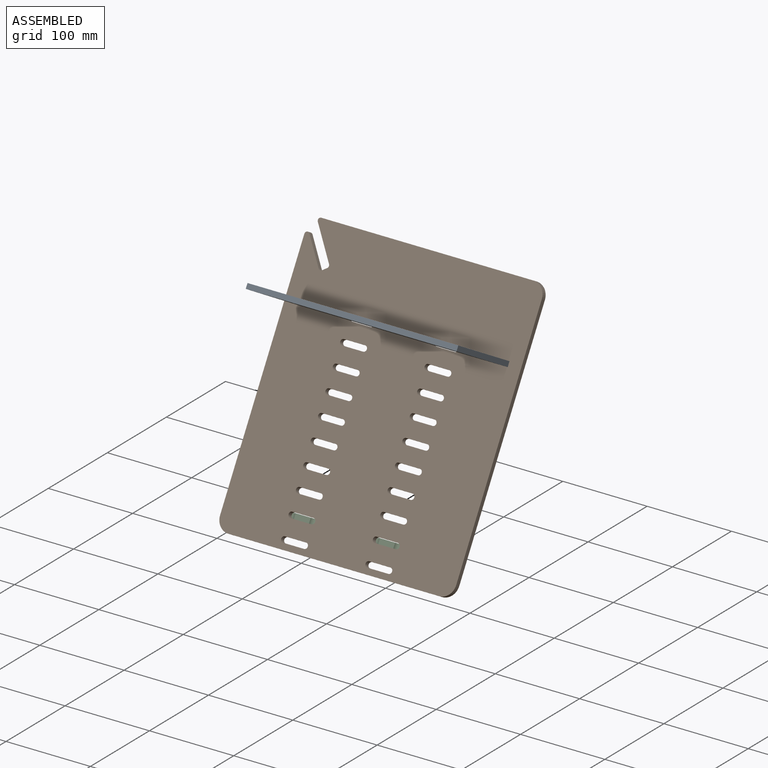
[diagram: assembled view]
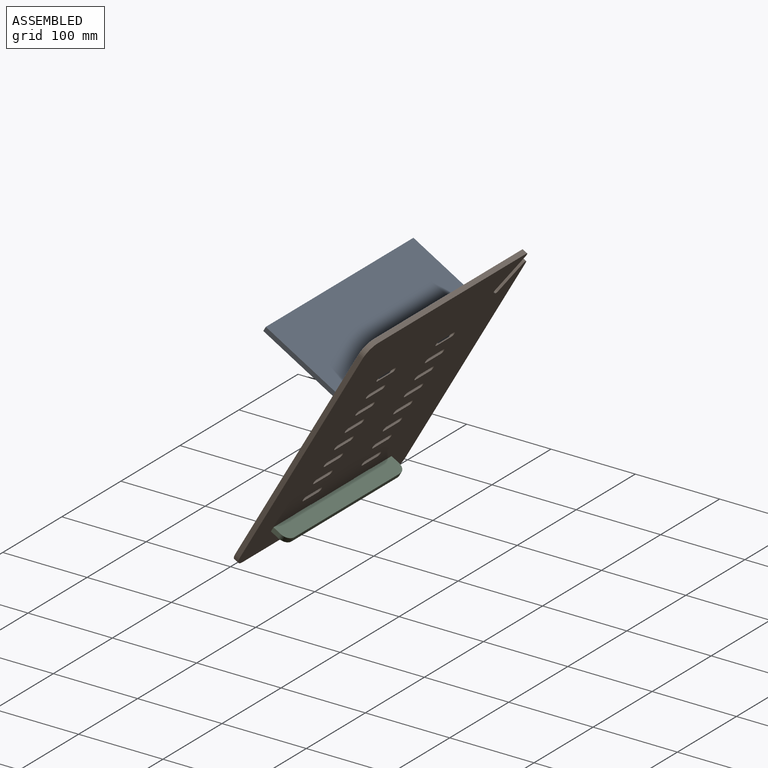
[diagram: assembled view, second angle]
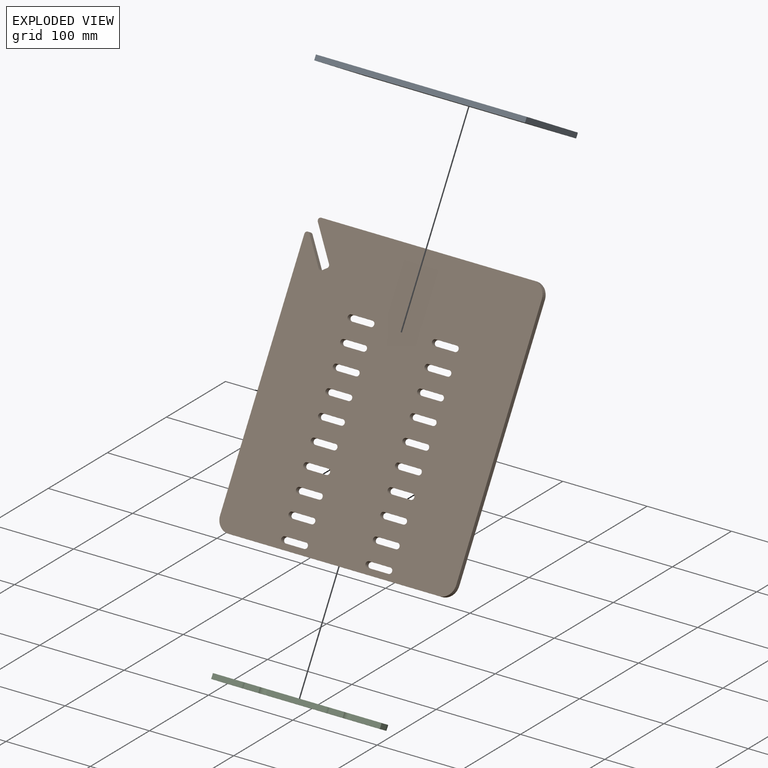
[diagram: exploded view]
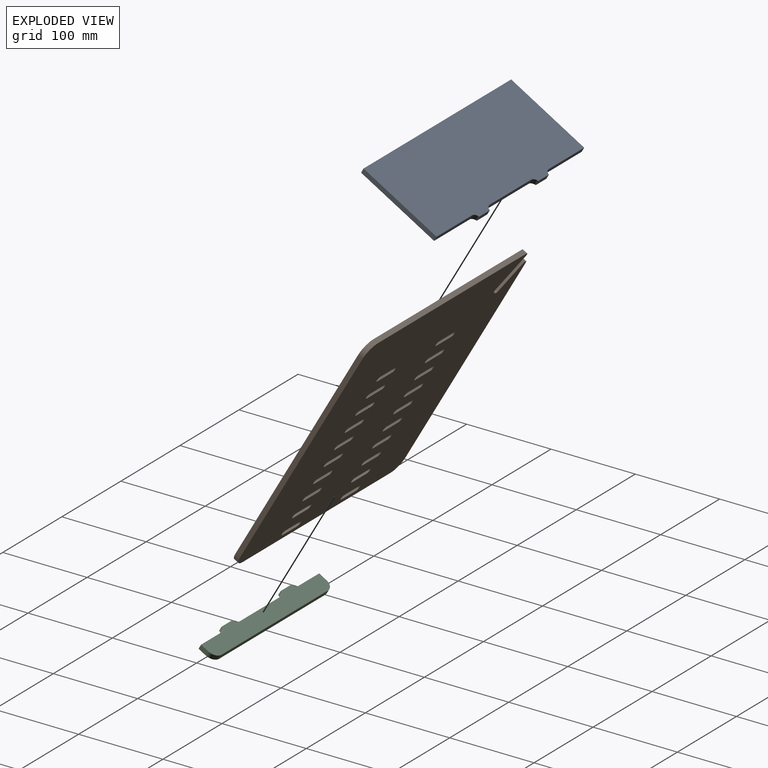
[diagram: exploded view, second angle]
ASSEMBLY  parts=3 mates=2
PART A: 14 faces, bbox 250x105x6 mm
  f0: plane 60.08x6mm, normal (0,1,0), area 360.5mm2, adj f1,f8,f9,f10
  f1: plane 100x6mm, normal (-1,0,0), area 600mm2, adj f0,f2,f8,f9
  f2: plane 250x6mm, normal (0,-1,0), area 1500mm2, adj f1,f3,f8,f9
  f3: plane 100x6mm, normal (1,0,0), area 600mm2, adj f2,f4,f8,f9
  f4: plane 60.08x6mm, normal (0,1,0), area 360.5mm2, adj f3,f8,f9,f13
  f5: plane 18x6mm, normal (0,1,0), area 108mm2, adj f8,f9,f12,f13
  f6: plane 70.17x6mm, normal (0,1,0), area 421mm2, adj f8,f9,f11,f12
  f7: plane 18x6mm, normal (0,1,0), area 108mm2, adj f8,f9,f10,f11
  f8: plane 250x105mm, normal (0,0,1), area 25209.1mm2, adj f0,f1,f2,f3,f4,f5,f6,f7
  f9: plane 250x105mm, normal (0,0,-1), area 25209.1mm2, adj f0,f1,f2,f3,f4,f5,f6,f7
  f10: cylinder r=6mm len=6mm, axis (0,0,-1), area 50.5mm2, adj f0,f7,f8,f9
  f11: cylinder r=6mm len=6mm, axis (0,0,-1), area 50.5mm2, adj f6,f7,f8,f9
  f12: cylinder r=6mm len=6mm, axis (0,0,1), area 50.5mm2, adj f5,f6,f8,f9
  f13: cylinder r=6mm len=6mm, axis (0,0,1), area 50.5mm2, adj f4,f5,f8,f9
PART B: 96 faces, bbox 280x320x6 mm
  f0: cylinder r=3.25mm len=6.5mm, axis (0,0,-1), area 61.3mm2, adj f1,f86,f87,f88
  f1: plane 25x6mm, normal (0,1,0), area 150mm2, adj f0,f2,f87,f88
  f2: cylinder r=3.25mm len=6.5mm, axis (0,0,-1), area 61.3mm2, adj f1,f86,f87,f88
  f3: cylinder r=3.25mm len=6.5mm, axis (0,0,-1), area 61.3mm2, adj f4,f66,f87,f88
  f4: plane 25x6mm, normal (0,1,0), area 150mm2, adj f3,f5,f87,f88
  f5: cylinder r=3.25mm len=6.5mm, axis (0,0,-1), area 61.3mm2, adj f4,f66,f87,f88
  f6: cylinder r=3.25mm len=6.5mm, axis (0,0,-1), area 61.3mm2, adj f7,f67,f87,f88
  f7: plane 25x6mm, normal (0,1,0), area 150mm2, adj f6,f8,f87,f88
  f8: cylinder r=3.25mm len=6.5mm, axis (0,0,-1), area 61.3mm2, adj f7,f67,f87,f88
  f9: cylinder r=3.25mm len=6.5mm, axis (0,0,-1), area 61.3mm2, adj f10,f68,f87,f88
  f10: plane 25x6mm, normal (0,1,0), area 150mm2, adj f9,f11,f87,f88
  f11: cylinder r=3.25mm len=6.5mm, axis (0,0,-1), area 61.3mm2, adj f10,f68,f87,f88
  f12: cylinder r=3.25mm len=6.5mm, axis (0,0,-1), area 61.3mm2, adj f13,f69,f87,f88
  f13: plane 25x6mm, normal (0,1,0), area 150mm2, adj f12,f14,f87,f88
  f14: cylinder r=3.25mm len=6.5mm, axis (0,0,-1), area 61.3mm2, adj f13,f69,f87,f88
  f15: cylinder r=3.25mm len=6.5mm, axis (0,0,-1), area 61.3mm2, adj f16,f70,f87,f88
  f16: plane 25x6mm, normal (0,1,0), area 150mm2, adj f15,f17,f87,f88
  f17: cylinder r=3.25mm len=6.5mm, axis (0,0,-1), area 61.3mm2, adj f16,f70,f87,f88
  f18: cylinder r=3.25mm len=6.5mm, axis (0,0,-1), area 61.3mm2, adj f19,f71,f87,f88
  f19: plane 25x6mm, normal (0,1,0), area 150mm2, adj f18,f20,f87,f88
  f20: cylinder r=3.25mm len=6.5mm, axis (0,0,-1), area 61.3mm2, adj f19,f71,f87,f88
  f21: cylinder r=3.25mm len=6.5mm, axis (0,0,-1), area 61.3mm2, adj f22,f72,f87,f88
  f22: plane 25x6mm, normal (0,1,0), area 150mm2, adj f21,f23,f87,f88
  f23: cylinder r=3.25mm len=6.5mm, axis (0,0,-1), area 61.3mm2, adj f22,f72,f87,f88
  f24: cylinder r=3.25mm len=6.5mm, axis (0,0,-1), area 61.3mm2, adj f25,f73,f87,f88
  f25: plane 25x6mm, normal (0,1,0), area 150mm2, adj f24,f26,f87,f88
  f26: cylinder r=3.25mm len=6.5mm, axis (0,0,-1), area 61.3mm2, adj f25,f73,f87,f88
  f27: cylinder r=3.25mm len=6.5mm, axis (0,0,-1), area 61.3mm2, adj f28,f74,f87,f88
  f28: plane 25x6mm, normal (0,1,0), area 150mm2, adj f27,f29,f87,f88
  f29: cylinder r=3.25mm len=6.5mm, axis (0,0,-1), area 61.3mm2, adj f28,f74,f87,f88
  f30: cylinder r=3.25mm len=6.5mm, axis (0,0,-1), area 61.3mm2, adj f31,f75,f87,f88
  f31: plane 25x6mm, normal (0,1,0), area 150mm2, adj f30,f32,f87,f88
  f32: cylinder r=3.25mm len=6.5mm, axis (0,0,-1), area 61.3mm2, adj f31,f75,f87,f88
  f33: cylinder r=3.25mm len=6.5mm, axis (0,0,-1), area 61.3mm2, adj f34,f76,f87,f88
  f34: plane 25x6mm, normal (0,1,0), area 150mm2, adj f33,f35,f87,f88
  f35: cylinder r=3.25mm len=6.5mm, axis (0,0,-1), area 61.3mm2, adj f34,f76,f87,f88
  f36: cylinder r=3.25mm len=6.5mm, axis (0,0,-1), area 61.3mm2, adj f37,f77,f87,f88
  f37: plane 25x6mm, normal (0,1,0), area 150mm2, adj f36,f38,f87,f88
  f38: cylinder r=3.25mm len=6.5mm, axis (0,0,-1), area 61.3mm2, adj f37,f77,f87,f88
  f39: cylinder r=3.25mm len=6.5mm, axis (0,0,-1), area 61.3mm2, adj f40,f78,f87,f88
  f40: plane 25x6mm, normal (0,1,0), area 150mm2, adj f39,f41,f87,f88
  f41: cylinder r=3.25mm len=6.5mm, axis (0,0,-1), area 61.3mm2, adj f40,f78,f87,f88
  f42: cylinder r=3.25mm len=6.5mm, axis (0,0,-1), area 61.3mm2, adj f43,f79,f87,f88
  f43: plane 25x6mm, normal (0,1,0), area 150mm2, adj f42,f44,f87,f88
  f44: cylinder r=3.25mm len=6.5mm, axis (0,0,-1), area 61.3mm2, adj f43,f79,f87,f88
  f45: cylinder r=3.25mm len=6.5mm, axis (0,0,-1), area 61.3mm2, adj f46,f80,f87,f88
  f46: plane 25x6mm, normal (0,1,0), area 150mm2, adj f45,f47,f87,f88
  f47: cylinder r=3.25mm len=6.5mm, axis (0,0,-1), area 61.3mm2, adj f46,f80,f87,f88
  f48: cylinder r=3.25mm len=6.5mm, axis (0,0,-1), area 61.3mm2, adj f49,f81,f87,f88
  f49: plane 25x6mm, normal (0,1,0), area 150mm2, adj f48,f50,f87,f88
  f50: cylinder r=3.25mm len=6.5mm, axis (0,0,-1), area 61.3mm2, adj f49,f81,f87,f88
  f51: cylinder r=3.25mm len=6.5mm, axis (0,0,-1), area 61.3mm2, adj f52,f82,f87,f88
  f52: plane 25x6mm, normal (0,1,0), area 150mm2, adj f51,f53,f87,f88
  f53: cylinder r=3.25mm len=6.5mm, axis (0,0,-1), area 61.3mm2, adj f52,f82,f87,f88
  f54: cylinder r=3.25mm len=6.5mm, axis (0,0,-1), area 61.3mm2, adj f55,f83,f87,f88
  f55: plane 25x6mm, normal (0,1,0), area 150mm2, adj f54,f56,f87,f88
  f56: cylinder r=3.25mm len=6.5mm, axis (0,0,-1), area 61.3mm2, adj f55,f83,f87,f88
  f57: cylinder r=3.25mm len=6.5mm, axis (0,0,-1), area 61.3mm2, adj f58,f84,f87,f88
  f58: plane 25x6mm, normal (0,-1,0), area 150mm2, adj f57,f59,f87,f88
  f59: cylinder r=3.25mm len=6.5mm, axis (0,0,-1), area 61.3mm2, adj f58,f84,f87,f88
  f60: plane 290x6mm, normal (1,0,0), area 1740mm2, adj f87,f88,f89,f91
  f61: plane 251.78x6mm, normal (0,1,0), area 1510.7mm2, adj f87,f88,f89,f92
  f62: plane 36.27x25.96mm, normal (-0.81,-0.58,0), area 267.6mm2, adj f87,f88,f92,f93
  f63: plane 6x4.88mm, normal (-0.58,0.81,0), area 36mm2, adj f87,f88,f93,f94
  f64: plane 30.09x21.54mm, normal (0.81,0.58,0), area 222mm2, adj f87,f88,f94,f95
  f65: plane 285.35x6mm, normal (-1,0,0), area 1712.1mm2, adj f87,f88,f90,f95
  f66: plane 25x6mm, normal (0,-1,0), area 150mm2, adj f3,f5,f87,f88
  f67: plane 25x6mm, normal (0,-1,0), area 150mm2, adj f6,f8,f87,f88
  f68: plane 25x6mm, normal (0,-1,0), area 150mm2, adj f9,f11,f87,f88
  f69: plane 25x6mm, normal (0,-1,0), area 150mm2, adj f12,f14,f87,f88
  f70: plane 25x6mm, normal (0,-1,0), area 150mm2, adj f15,f17,f87,f88
  f71: plane 25x6mm, normal (0,-1,0), area 150mm2, adj f18,f20,f87,f88
  f72: plane 25x6mm, normal (0,-1,0), area 150mm2, adj f21,f23,f87,f88
  f73: plane 25x6mm, normal (0,-1,0), area 150mm2, adj f24,f26,f87,f88
  f74: plane 25x6mm, normal (0,-1,0), area 150mm2, adj f27,f29,f87,f88
  f75: plane 25x6mm, normal (0,-1,0), area 150mm2, adj f30,f32,f87,f88
  f76: plane 25x6mm, normal (0,-1,0), area 150mm2, adj f33,f35,f87,f88
  f77: plane 25x6mm, normal (0,-1,0), area 150mm2, adj f36,f38,f87,f88
  f78: plane 25x6mm, normal (0,-1,0), area 150mm2, adj f39,f41,f87,f88
  f79: plane 25x6mm, normal (0,-1,0), area 150mm2, adj f42,f44,f87,f88
  f80: plane 25x6mm, normal (0,-1,0), area 150mm2, adj f45,f47,f87,f88
  f81: plane 25x6mm, normal (0,-1,0), area 150mm2, adj f48,f50,f87,f88
  f82: plane 25x6mm, normal (0,-1,0), area 150mm2, adj f51,f53,f87,f88
  f83: plane 25x6mm, normal (0,-1,0), area 150mm2, adj f54,f56,f87,f88
  f84: plane 25x6mm, normal (0,1,0), area 150mm2, adj f57,f59,f87,f88
  f85: plane 250x6mm, normal (0,-1,0), area 1500mm2, adj f87,f88,f90,f91
  f86: plane 25x6mm, normal (0,-1,0), area 150mm2, adj f0,f2,f87,f88
  f87: plane 320x280mm, normal (0,0,1), area 84866.2mm2, adj f0,f1,f2,f3,f4,f5,f6,f7
  f88: plane 320x280mm, normal (0,0,-1), area 84866.2mm2, adj f0,f1,f2,f3,f4,f5,f6,f7
  f89: cylinder r=15mm len=15mm, axis (0,0,-1), area 141.4mm2, adj f60,f61,f87,f88
  f90: cylinder r=15mm len=15mm, axis (0,0,-1), area 141.4mm2, adj f65,f85,f87,f88
  f91: cylinder r=15mm len=15mm, axis (0,0,1), area 141.4mm2, adj f60,f85,f87,f88
  f92: cylinder r=3mm len=6mm, axis (0,0,-1), area 39.5mm2, adj f61,f62,f87,f88
  f93: cylinder r=3mm len=6mm, axis (0,0,1), area 28.3mm2, adj f62,f63,f87,f88
  f94: cylinder r=3mm len=6mm, axis (0,0,1), area 28.3mm2, adj f63,f64,f87,f88
  f95: cylinder r=3mm len=6mm, axis (0,0,1), area 45.4mm2, adj f64,f65,f87,f88
PART C: 16 faces, bbox 200x25x6 mm
  f0: plane 35.08x6mm, normal (0,-1,0), area 210.5mm2, adj f1,f8,f9,f11
  f1: plane 10x6mm, normal (1,0,0), area 60mm2, adj f0,f8,f9,f14
  f2: plane 180x6mm, normal (0,1,0), area 1080mm2, adj f8,f9,f14,f15
  f3: plane 10x6mm, normal (-1,0,0), area 60mm2, adj f4,f8,f9,f15
  f4: plane 35.08x6mm, normal (0,-1,0), area 210.5mm2, adj f3,f8,f9,f12
  f5: plane 18x6mm, normal (0,-1,0), area 108mm2, adj f8,f9,f12,f13
  f6: plane 70.17x6mm, normal (0,-1,0), area 421mm2, adj f8,f9,f10,f13
  f7: plane 18x6mm, normal (0,-1,0), area 108mm2, adj f8,f9,f10,f11
  f8: plane 200x25mm, normal (0,0,1), area 4166.2mm2, adj f0,f1,f2,f3,f4,f5,f6,f7
  f9: plane 200x25mm, normal (0,0,-1), area 4166.2mm2, adj f0,f1,f2,f3,f4,f5,f6,f7
  f10: cylinder r=6mm len=6mm, axis (0,0,1), area 50.5mm2, adj f6,f7,f8,f9
  f11: cylinder r=6mm len=6mm, axis (0,0,1), area 50.5mm2, adj f0,f7,f8,f9
  f12: cylinder r=6mm len=6mm, axis (0,0,1), area 50.5mm2, adj f4,f5,f8,f9
  f13: cylinder r=6mm len=6mm, axis (0,0,1), area 50.5mm2, adj f5,f6,f8,f9
  f14: cylinder r=10mm len=10mm, axis (0,0,1), area 94.2mm2, adj f1,f2,f8,f9
  f15: cylinder r=10mm len=10mm, axis (0,0,-1), area 94.2mm2, adj f2,f3,f8,f9
PLACE A rot(axis=(-1,0,0),30deg) t=(66.12,160.37,69.8)mm
PLACE B rot(axis=(1,0,0),60deg) t=(365.31,18.54,-11.23)mm
PLACE C rot(axis=(-1,0,0),30deg) t=(50.22,-11.16,-62.68)mm
MATE fastened A.f8 <-> B.f86  axis (0,0.5,0.87) through (251.1,91.22,116.65)mm
MATE fastened C.f9 <-> B.f25  axis (0,-0.5,-0.87) through (251.1,-15.49,-60.18)mm
